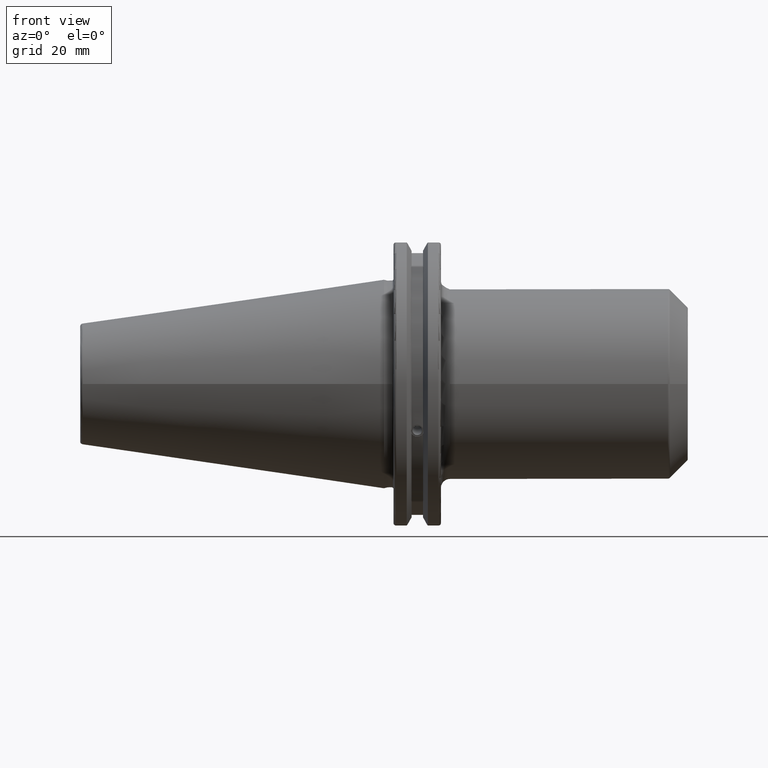
[diagram: clean part render]
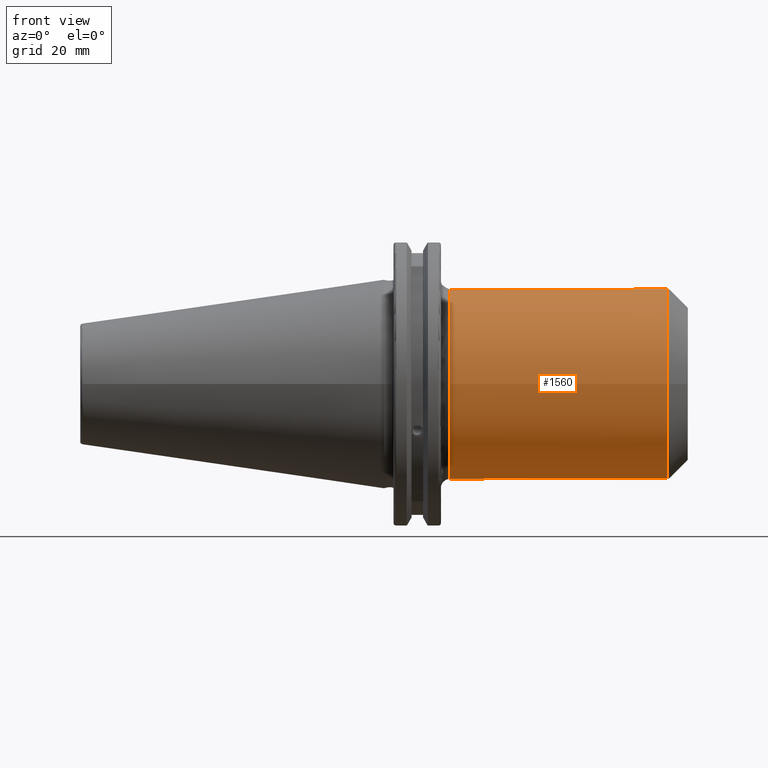
[diagram: same view with one face highlighted and labeled with its STEP entity id]
A machine part, front view. The second image highlights one B-rep face of the part: STEP entity #1560.
In plain terms, the highlighted cylindrical surface (bore or boss wall) has radius 31.75 mm, axis along (1, 0, 0).
Its self-contained STEP definition (entity closure, byte-faithful):
#59=FACE_BOUND('',#224,.T.);
#60=FACE_BOUND('',#225,.T.);
#130=FACE_OUTER_BOUND('',#223,.T.);
#223=EDGE_LOOP('',(#1082,#1083,#1084,#1085,#1086,#1087));
#224=EDGE_LOOP('',(#1088,#1089));
#225=EDGE_LOOP('',(#1090,#1091));
#332=B_SPLINE_CURVE_WITH_KNOTS('',3,(#2334,#2335,#2336,#2337,#2338,#2339,
#2340,#2341,#2342,#2343),.UNSPECIFIED.,.F.,.F.,(4,2,2,2,4),(0.,0.374443492453987,
0.748886984907974,1.13657310866181,1.52425923241565),.UNSPECIFIED.);
#333=B_SPLINE_CURVE_WITH_KNOTS('',3,(#2344,#2345,#2346,#2347,#2348,#2349,
#2350,#2351,#2352,#2353,#2354,#2355,#2356,#2357,#2358,#2359,#2360,#2361,
#2362,#2363,#2364,#2365,#2366,#2367,#2368,#2369),.UNSPECIFIED.,.F.,.F.,
(4,2,2,2,2,2,2,2,2,2,2,2,4),(1.52425923241565,1.91194535616949,2.29963147992333,
2.67407497237732,3.04851846483131,3.42296195728529,3.79740544973928,4.18509157349312,
4.57277769724696,4.9604638210008,5.34814994475464,5.72259343720863,6.09703692966261),
 .UNSPECIFIED.);
#336=B_SPLINE_CURVE_WITH_KNOTS('',3,(#2419,#2420,#2421,#2422,#2423,#2424,
#2425,#2426,#2427,#2428),.UNSPECIFIED.,.F.,.F.,(4,2,2,2,4),(0.,0.374443492453987,
0.748886984907974,1.13657310866181,1.52425923241565),.UNSPECIFIED.);
#337=B_SPLINE_CURVE_WITH_KNOTS('',3,(#2429,#2430,#2431,#2432,#2433,#2434,
#2435,#2436,#2437,#2438,#2439,#2440,#2441,#2442,#2443,#2444,#2445,#2446,
#2447,#2448,#2449,#2450,#2451,#2452,#2453,#2454),.UNSPECIFIED.,.F.,.F.,
(4,2,2,2,2,2,2,2,2,2,2,2,4),(1.52425923241565,1.91194535616949,2.29963147992333,
2.67407497237732,3.04851846483131,3.42296195728529,3.79740544973928,4.18509157349312,
4.57277769724696,4.9604638210008,5.34814994475464,5.72259343720863,6.09703692966261),
 .UNSPECIFIED.);
#381=LINE('',#2473,#475);
#475=VECTOR('',#1887,31.75);
#571=CIRCLE('',#1680,31.75);
#572=CIRCLE('',#1681,31.75);
#575=CIRCLE('',#1686,31.75);
#576=CIRCLE('',#1687,31.75);
#649=VERTEX_POINT('',#2331);
#650=VERTEX_POINT('',#2333);
#655=VERTEX_POINT('',#2416);
#656=VERTEX_POINT('',#2418);
#659=VERTEX_POINT('',#2460);
#660=VERTEX_POINT('',#2462);
#663=VERTEX_POINT('',#2472);
#664=VERTEX_POINT('',#2474);
#813=EDGE_CURVE('',#650,#649,#332,.T.);
#814=EDGE_CURVE('',#649,#650,#333,.T.);
#821=EDGE_CURVE('',#656,#655,#336,.T.);
#822=EDGE_CURVE('',#655,#656,#337,.T.);
#826=EDGE_CURVE('',#659,#660,#571,.T.);
#827=EDGE_CURVE('',#660,#659,#572,.T.);
#831=EDGE_CURVE('',#660,#663,#381,.T.);
#832=EDGE_CURVE('',#664,#663,#575,.T.);
#833=EDGE_CURVE('',#663,#664,#576,.T.);
#1082=ORIENTED_EDGE('',*,*,#827,.F.);
#1083=ORIENTED_EDGE('',*,*,#831,.T.);
#1084=ORIENTED_EDGE('',*,*,#832,.F.);
#1085=ORIENTED_EDGE('',*,*,#833,.F.);
#1086=ORIENTED_EDGE('',*,*,#831,.F.);
#1087=ORIENTED_EDGE('',*,*,#826,.F.);
#1088=ORIENTED_EDGE('',*,*,#813,.T.);
#1089=ORIENTED_EDGE('',*,*,#814,.T.);
#1090=ORIENTED_EDGE('',*,*,#821,.T.);
#1091=ORIENTED_EDGE('',*,*,#822,.T.);
#1526=CYLINDRICAL_SURFACE('',#1685,31.75);
#1560=ADVANCED_FACE('',(#130,#59,#60),#1526,.T.);
#1680=AXIS2_PLACEMENT_3D('',#2463,#1874,#1875);
#1681=AXIS2_PLACEMENT_3D('',#2464,#1876,#1877);
#1685=AXIS2_PLACEMENT_3D('',#2471,#1885,#1886);
#1686=AXIS2_PLACEMENT_3D('',#2475,#1888,#1889);
#1687=AXIS2_PLACEMENT_3D('',#2476,#1890,#1891);
#1874=DIRECTION('center_axis',(1.,0.,0.));
#1875=DIRECTION('ref_axis',(0.,-1.,1.83697019872103E-16));
#1876=DIRECTION('center_axis',(1.,0.,0.));
#1877=DIRECTION('ref_axis',(0.,-1.,1.83697019872103E-16));
#1885=DIRECTION('center_axis',(1.,0.,0.));
#1886=DIRECTION('ref_axis',(0.,1.,0.));
#1887=DIRECTION('',(-1.,0.,0.));
#1888=DIRECTION('center_axis',(-1.,0.,0.));
#1889=DIRECTION('ref_axis',(0.,-1.,-1.22464679914735E-16));
#1890=DIRECTION('center_axis',(-1.,0.,0.));
#1891=DIRECTION('ref_axis',(0.,-1.,-1.22464679914735E-16));
#2331=CARTESIAN_POINT('',(68.39,31.75,-1.31649530908341E-15));
#2333=CARTESIAN_POINT('',(57.64,30.343922243347,-9.34392224334695));
#2334=CARTESIAN_POINT('Ctrl Pts',(57.64,30.343922243347,-9.34392224334695));
#2335=CARTESIAN_POINT('Ctrl Pts',(58.8881449748466,30.343922243347,-9.34392224334695));
#2336=CARTESIAN_POINT('Ctrl Pts',(60.2312118557551,30.4087350837418,-9.14147258450894));
#2337=CARTESIAN_POINT('Ctrl Pts',(62.7537796920474,30.6513254176603,-8.29180053230486));
#2338=CARTESIAN_POINT('Ctrl Pts',(63.9336089740548,30.8260579112038,-7.64468628242531));
#2339=CARTESIAN_POINT('Ctrl Pts',(65.8999150956574,31.1742711651337,-6.07427780465313));
#2340=CARTESIAN_POINT('Ctrl Pts',(66.8132230344646,31.3730025068592,-5.02458478722688));
#2341=CARTESIAN_POINT('Ctrl Pts',(68.0593628723698,31.663406845729,-2.63446841359293));
#2342=CARTESIAN_POINT('Ctrl Pts',(68.39,31.75,-1.29228707917947));
#2343=CARTESIAN_POINT('Ctrl Pts',(68.39,31.75,-1.66533453693773E-15));
#2344=CARTESIAN_POINT('Ctrl Pts',(68.39,31.75,-2.77555756156289E-16));
#2345=CARTESIAN_POINT('Ctrl Pts',(68.39,31.75,1.29228707917947));
#2346=CARTESIAN_POINT('Ctrl Pts',(68.0593628723698,31.663406845729,2.63446841359294));
#2347=CARTESIAN_POINT('Ctrl Pts',(66.8132230344646,31.3730025068592,5.02458478722689));
#2348=CARTESIAN_POINT('Ctrl Pts',(65.8999150956574,31.1742711651337,6.07427780465312));
#2349=CARTESIAN_POINT('Ctrl Pts',(63.9336089740548,30.8260579112038,7.64468628242531));
#2350=CARTESIAN_POINT('Ctrl Pts',(62.7537796920474,30.6513254176603,8.29180053230486));
#2351=CARTESIAN_POINT('Ctrl Pts',(60.2312118557551,30.4087350837418,9.14147258450894));
#2352=CARTESIAN_POINT('Ctrl Pts',(58.8881449748466,30.343922243347,9.34392224334696));
#2353=CARTESIAN_POINT('Ctrl Pts',(56.3918550251534,30.343922243347,9.34392224334696));
#2354=CARTESIAN_POINT('Ctrl Pts',(55.0487881442449,30.4087350837418,9.14147258450895));
#2355=CARTESIAN_POINT('Ctrl Pts',(52.5262203079526,30.6513254176603,8.29180053230486));
#2356=CARTESIAN_POINT('Ctrl Pts',(51.3463910259453,30.8260579112038,7.64468628242532));
#2357=CARTESIAN_POINT('Ctrl Pts',(49.3800849043426,31.1742711651337,6.07427780465313));
#2358=CARTESIAN_POINT('Ctrl Pts',(48.4667769655355,31.3730025068592,5.02458478722689));
#2359=CARTESIAN_POINT('Ctrl Pts',(47.2206371276302,31.663406845729,2.63446841359294));
#2360=CARTESIAN_POINT('Ctrl Pts',(46.89,31.75,1.29228707917947));
#2361=CARTESIAN_POINT('Ctrl Pts',(46.89,31.75,-1.29228707917946));
#2362=CARTESIAN_POINT('Ctrl Pts',(47.2206371276302,31.663406845729,-2.63446841359294));
#2363=CARTESIAN_POINT('Ctrl Pts',(48.4667769655355,31.3730025068592,-5.02458478722689));
#2364=CARTESIAN_POINT('Ctrl Pts',(49.3800849043426,31.1742711651337,-6.07427780465312));
#2365=CARTESIAN_POINT('Ctrl Pts',(51.3463910259453,30.8260579112038,-7.64468628242531));
#2366=CARTESIAN_POINT('Ctrl Pts',(52.5262203079526,30.6513254176603,-8.29180053230486));
#2367=CARTESIAN_POINT('Ctrl Pts',(55.0487881442449,30.4087350837418,-9.14147258450895));
#2368=CARTESIAN_POINT('Ctrl Pts',(56.3918550251534,30.343922243347,-9.34392224334695));
#2369=CARTESIAN_POINT('Ctrl Pts',(57.64,30.343922243347,-9.34392224334695));
#2416=CARTESIAN_POINT('',(91.25,31.75,-1.31649530908341E-15));
#2418=CARTESIAN_POINT('',(80.5,30.343922243347,-9.34392224334696));
#2419=CARTESIAN_POINT('Ctrl Pts',(80.5,30.343922243347,-9.34392224334696));
#2420=CARTESIAN_POINT('Ctrl Pts',(81.7481449748466,30.343922243347,-9.34392224334696));
#2421=CARTESIAN_POINT('Ctrl Pts',(83.0912118557551,30.4087350837418,-9.14147258450894));
#2422=CARTESIAN_POINT('Ctrl Pts',(85.6137796920473,30.6513254176603,-8.29180053230486));
#2423=CARTESIAN_POINT('Ctrl Pts',(86.7936089740547,30.8260579112038,-7.64468628242532));
#2424=CARTESIAN_POINT('Ctrl Pts',(88.7599150956574,31.1742711651337,-6.07427780465313));
#2425=CARTESIAN_POINT('Ctrl Pts',(89.6732230344645,31.3730025068592,-5.02458478722689));
#2426=CARTESIAN_POINT('Ctrl Pts',(90.9193628723698,31.663406845729,-2.63446841359294));
#2427=CARTESIAN_POINT('Ctrl Pts',(91.25,31.75,-1.29228707917947));
#2428=CARTESIAN_POINT('Ctrl Pts',(91.25,31.75,-1.38777878078145E-15));
#2429=CARTESIAN_POINT('Ctrl Pts',(91.25,31.75,-2.77555756156289E-16));
#2430=CARTESIAN_POINT('Ctrl Pts',(91.25,31.75,1.29228707917947));
#2431=CARTESIAN_POINT('Ctrl Pts',(90.9193628723698,31.663406845729,2.63446841359294));
#2432=CARTESIAN_POINT('Ctrl Pts',(89.6732230344645,31.3730025068592,5.02458478722689));
#2433=CARTESIAN_POINT('Ctrl Pts',(88.7599150956574,31.1742711651337,6.07427780465313));
#2434=CARTESIAN_POINT('Ctrl Pts',(86.7936089740547,30.8260579112038,7.64468628242532));
#2435=CARTESIAN_POINT('Ctrl Pts',(85.6137796920473,30.6513254176603,8.29180053230486));
#2436=CARTESIAN_POINT('Ctrl Pts',(83.0912118557551,30.4087350837418,9.14147258450894));
#2437=CARTESIAN_POINT('Ctrl Pts',(81.7481449748466,30.343922243347,9.34392224334696));
#2438=CARTESIAN_POINT('Ctrl Pts',(79.2518550251534,30.343922243347,9.34392224334696));
#2439=CARTESIAN_POINT('Ctrl Pts',(77.9087881442449,30.4087350837418,9.14147258450895));
#2440=CARTESIAN_POINT('Ctrl Pts',(75.3862203079526,30.6513254176603,8.29180053230486));
#2441=CARTESIAN_POINT('Ctrl Pts',(74.2063910259453,30.8260579112038,7.64468628242532));
#2442=CARTESIAN_POINT('Ctrl Pts',(72.2400849043426,31.1742711651337,6.07427780465313));
#2443=CARTESIAN_POINT('Ctrl Pts',(71.3267769655355,31.3730025068592,5.02458478722689));
#2444=CARTESIAN_POINT('Ctrl Pts',(70.0806371276302,31.663406845729,2.63446841359294));
#2445=CARTESIAN_POINT('Ctrl Pts',(69.75,31.75,1.29228707917947));
#2446=CARTESIAN_POINT('Ctrl Pts',(69.75,31.75,-1.29228707917946));
#2447=CARTESIAN_POINT('Ctrl Pts',(70.0806371276302,31.663406845729,-2.63446841359294));
#2448=CARTESIAN_POINT('Ctrl Pts',(71.3267769655355,31.3730025068592,-5.02458478722689));
#2449=CARTESIAN_POINT('Ctrl Pts',(72.2400849043426,31.1742711651337,-6.07427780465312));
#2450=CARTESIAN_POINT('Ctrl Pts',(74.2063910259453,30.8260579112038,-7.64468628242531));
#2451=CARTESIAN_POINT('Ctrl Pts',(75.3862203079526,30.6513254176603,-8.29180053230486));
#2452=CARTESIAN_POINT('Ctrl Pts',(77.9087881442449,30.4087350837418,-9.14147258450895));
#2453=CARTESIAN_POINT('Ctrl Pts',(79.2518550251534,30.343922243347,-9.34392224334695));
#2454=CARTESIAN_POINT('Ctrl Pts',(80.5,30.343922243347,-9.34392224334695));
#2460=CARTESIAN_POINT('',(94.9357864376269,-3.88825358729285E-15,31.75));
#2462=CARTESIAN_POINT('',(94.9357864376269,-31.75,-3.88825358729285E-15));
#2463=CARTESIAN_POINT('Origin',(94.9357864376269,0.,0.));
#2464=CARTESIAN_POINT('Origin',(94.9357864376269,0.,0.));
#2471=CARTESIAN_POINT('Origin',(57.2,0.,0.));
#2472=CARTESIAN_POINT('',(22.05,-31.75,-3.88825358729285E-15));
#2473=CARTESIAN_POINT('',(57.2,-31.75,-3.88825358729285E-15));
#2474=CARTESIAN_POINT('',(22.05,-3.88825358729285E-15,-31.75));
#2475=CARTESIAN_POINT('Origin',(22.05,0.,0.));
#2476=CARTESIAN_POINT('Origin',(22.05,0.,0.));